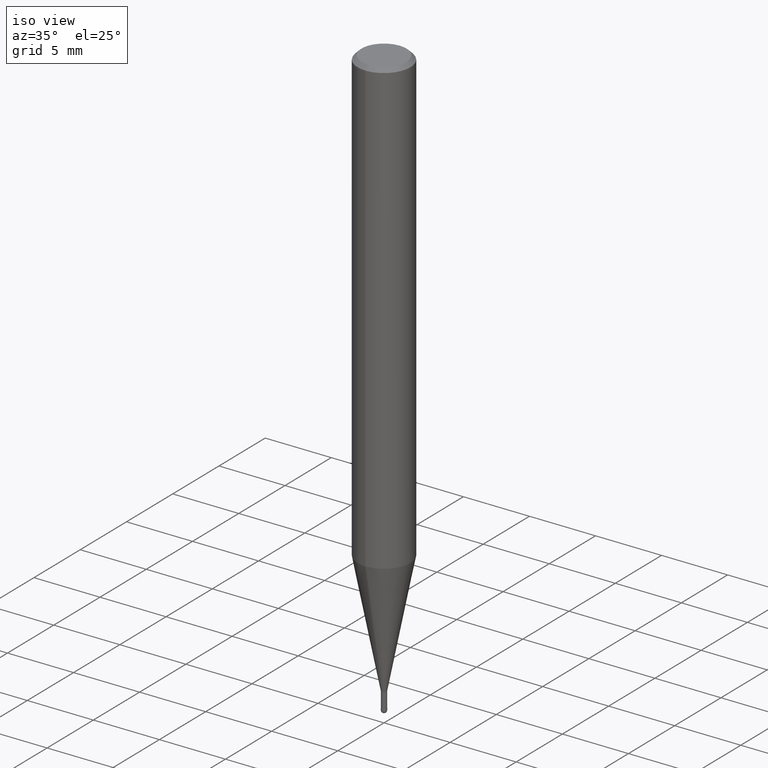
[diagram: clean part render]
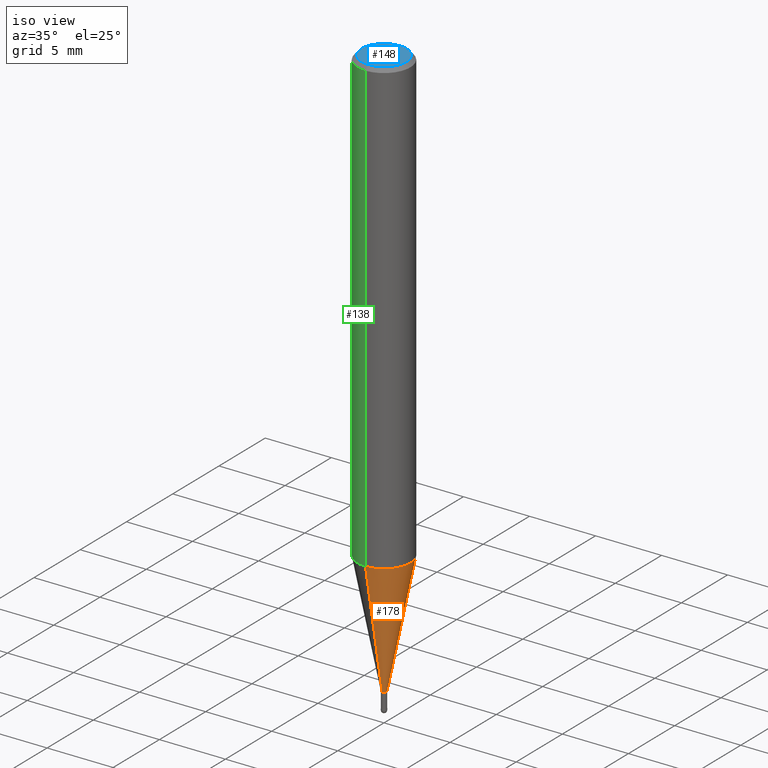
[diagram: same view with three faces highlighted in distinct colors, each labeled with its STEP entity id]
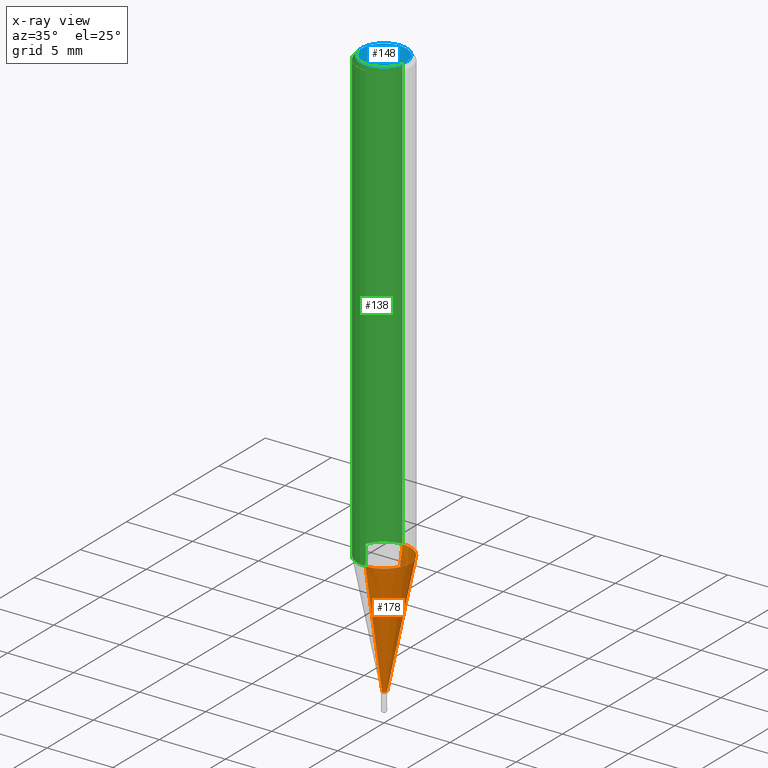
[diagram: x-ray of the same camera — body ghosted, the three highlighted faces saturated]
A machine part, iso view with three faces highlighted in distinct colors.
The next image is the same camera in x-ray (body ghosted, the three faces saturated) — at least one of them is partly hidden behind the body in this view.
Their STEP definitions:

[orange] entity #178 — the highlighted conical surface has half-angle 11 deg.
#96=EDGE_CURVE('',#136,#120,#237,.T.);
#116=EDGE_CURVE('',#136,#152,#262,.T.);
#120=VERTEX_POINT('',#266);
#136=VERTEX_POINT('',#286);
#150=VERTEX_POINT('',#302);
#152=VERTEX_POINT('',#304);
#154=EDGE_CURVE('',#150,#152,#306,.T.);
#178=ADVANCED_FACE('',(#332),#333,.T.);
#194=EDGE_CURVE('',#120,#150,#350,.T.);
#237=LINE('',#388,#389);
#262=CIRCLE('',#420,1.99995);
#266=CARTESIAN_POINT('',(0.0,0.19495,-43.5));
#286=CARTESIAN_POINT('',(0.0,1.99995,-34.214));
#302=CARTESIAN_POINT('',(2.38737008677672E-017,-0.19495,-43.5));
#304=CARTESIAN_POINT('',(2.44915147732706E-016,-1.99995,-34.214));
#306=LINE('',#470,#471);
#332=FACE_OUTER_BOUND('',#502,.T.);
#333=CONICAL_SURFACE('',#503,1.09745,0.191984604054908);
#350=CIRCLE('',#525,0.19495);
#388=CARTESIAN_POINT('',(-1.34394424300237E-016,1.09745,-38.857));
#389=VECTOR('',#559,1.0);
#420=AXIS2_PLACEMENT_3D('',#598,#599,#600);
#470=CARTESIAN_POINT('',(1.34394424300237E-016,-1.09745,-38.857));
#471=VECTOR('',#659,1.0);
#502=EDGE_LOOP('',(#689,#690,#691,#692));
#503=AXIS2_PLACEMENT_3D('',#693,#694,#695);
#525=AXIS2_PLACEMENT_3D('',#711,#712,#713);
#559=DIRECTION('',(2.33663968307108E-017,-0.190807411359389,-0.981627491348082));
#598=CARTESIAN_POINT('',(0.0,0.0,-34.214));
#599=DIRECTION('',(0.0,0.0,-1.0));
#600=DIRECTION('',(0.0,1.0,0.0));
#659=DIRECTION('',(2.33663968307108E-017,-0.190807411359389,0.981627491348082));
#689=ORIENTED_EDGE('',*,*,#96,.F.);
#690=ORIENTED_EDGE('',*,*,#116,.T.);
#691=ORIENTED_EDGE('',*,*,#154,.F.);
#692=ORIENTED_EDGE('',*,*,#194,.F.);
#693=CARTESIAN_POINT('',(0.0,0.0,-38.857));
#694=DIRECTION('',(-0.0,-0.0,1.0));
#695=DIRECTION('',(0.0,1.0,0.0));
#711=CARTESIAN_POINT('',(0.0,0.0,-43.5));
#712=DIRECTION('',(0.0,0.0,-1.0));
#713=DIRECTION('',(0.0,1.0,0.0));

[blue] entity #148 — the highlighted planar face has unit normal (-0, 0, 1).
#122=EDGE_CURVE('',#162,#182,#268,.T.);
#148=ADVANCED_FACE('',(#299),#300,.T.);
#160=EDGE_CURVE('',#182,#162,#313,.T.);
#162=VERTEX_POINT('',#315);
#182=VERTEX_POINT('',#337);
#268=CIRCLE('',#428,1.7);
#299=FACE_OUTER_BOUND('',#462,.T.);
#300=PLANE('',#463);
#313=CIRCLE('',#480,1.7);
#315=CARTESIAN_POINT('',(0.0,1.7,0.0));
#337=CARTESIAN_POINT('',(2.08183080149804E-016,-1.7,0.0));
#428=AXIS2_PLACEMENT_3D('',#604,#605,#606);
#462=EDGE_LOOP('',(#654,#655));
#463=AXIS2_PLACEMENT_3D('',#656,#657,#658);
#480=AXIS2_PLACEMENT_3D('',#671,#672,#673);
#604=CARTESIAN_POINT('',(0.0,0.0,0.0));
#605=DIRECTION('',(0.0,0.0,-1.0));
#606=DIRECTION('',(0.0,1.0,0.0));
#654=ORIENTED_EDGE('',*,*,#122,.F.);
#655=ORIENTED_EDGE('',*,*,#160,.F.);
#656=CARTESIAN_POINT('',(0.0,0.85,0.0));
#657=DIRECTION('',(-0.0,0.0,1.0));
#658=DIRECTION('',(0.0,-1.0,0.0));
#671=CARTESIAN_POINT('',(0.0,0.0,0.0));
#672=DIRECTION('',(0.0,0.0,-1.0));
#673=DIRECTION('',(0.0,1.0,0.0));

[green] entity #138 — the highlighted cylindrical surface (edge-blend (fillet) strip) has radius 2 mm, axis along (-0, -0, 1).
#98=EDGE_CURVE('',#140,#166,#239,.T.);
#112=EDGE_CURVE('',#188,#140,#257,.T.);
#138=ADVANCED_FACE('',(#288),#289,.T.);
#140=VERTEX_POINT('',#291);
#144=VERTEX_POINT('',#295);
#166=VERTEX_POINT('',#319);
#172=EDGE_CURVE('',#188,#144,#325,.T.);
#180=EDGE_CURVE('',#166,#144,#335,.T.);
#188=VERTEX_POINT('',#343);
#239=CIRCLE('',#392,2.0);
#257=LINE('',#413,#414);
#288=FACE_OUTER_BOUND('',#448,.T.);
#289=CYLINDRICAL_SURFACE('',#449,2.0);
#291=CARTESIAN_POINT('',(2.44921270764475E-016,-2.0,-0.299999999999997));
#295=CARTESIAN_POINT('',(0.0,2.0,-34.214));
#319=CARTESIAN_POINT('',(0.0,2.0,-0.299999999999997));
#325=CIRCLE('',#496,2.0);
#335=LINE('',#506,#507);
#343=CARTESIAN_POINT('',(2.44921270764475E-016,-2.0,-34.214));
#392=AXIS2_PLACEMENT_3D('',#560,#561,#562);
#413=CARTESIAN_POINT('',(2.44921270764475E-016,-2.0,-17.257));
#414=VECTOR('',#589,1.0);
#448=EDGE_LOOP('',(#642,#643,#644,#645));
#449=AXIS2_PLACEMENT_3D('',#646,#647,#648);
#496=AXIS2_PLACEMENT_3D('',#678,#679,#680);
#506=CARTESIAN_POINT('',(-2.44921270764475E-016,2.0,-17.257));
#507=VECTOR('',#696,1.0);
#560=CARTESIAN_POINT('',(0.0,0.0,-0.299999999999997));
#561=DIRECTION('',(0.0,0.0,-1.0));
#562=DIRECTION('',(0.0,1.0,0.0));
#589=DIRECTION('',(-0.0,-0.0,1.0));
#642=ORIENTED_EDGE('',*,*,#180,.T.);
#643=ORIENTED_EDGE('',*,*,#172,.F.);
#644=ORIENTED_EDGE('',*,*,#112,.T.);
#645=ORIENTED_EDGE('',*,*,#98,.T.);
#646=CARTESIAN_POINT('',(0.0,0.0,-17.257));
#647=DIRECTION('',(-0.0,-0.0,1.0));
#648=DIRECTION('',(0.0,1.0,0.0));
#678=CARTESIAN_POINT('',(0.0,0.0,-34.214));
#679=DIRECTION('',(0.0,0.0,-1.0));
#680=DIRECTION('',(0.0,1.0,0.0));
#696=DIRECTION('',(0.0,0.0,-1.0));